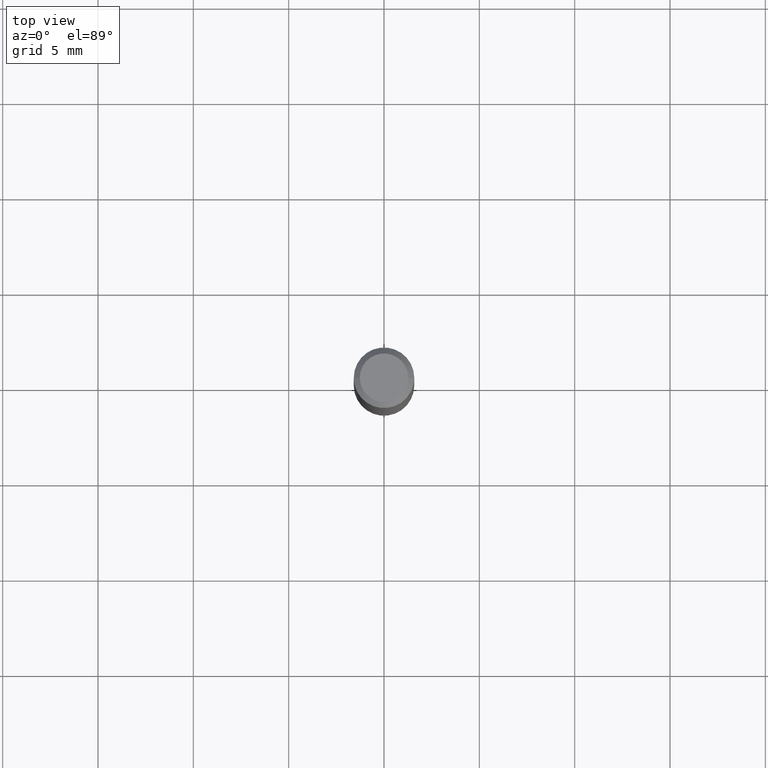
[diagram: clean part render]
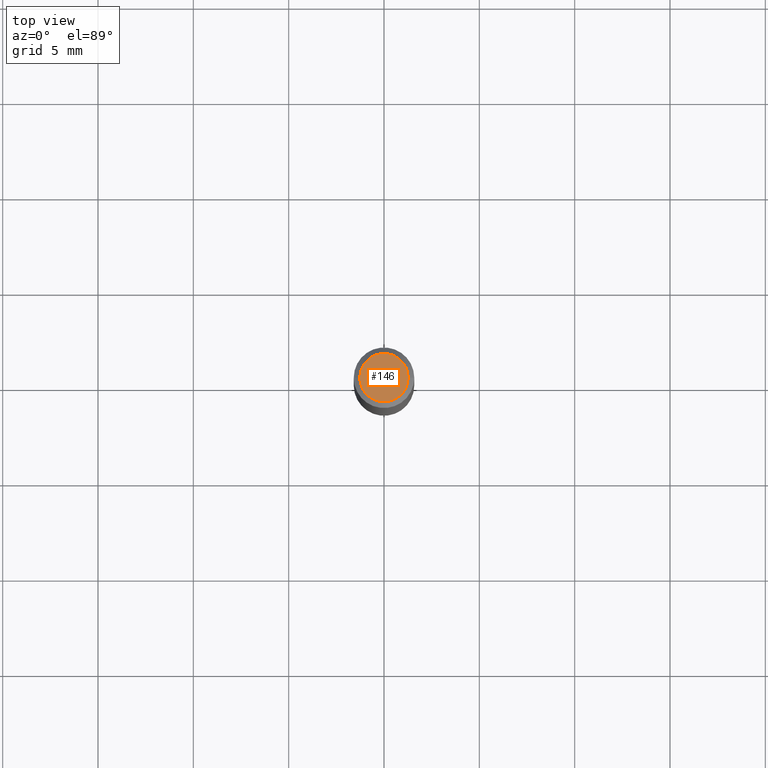
[diagram: same view with one face highlighted and labeled with its STEP entity id]
A machine part, top view. The second image highlights one B-rep face of the part: STEP entity #146.
In plain terms, the highlighted planar face has unit normal (0, -0, -1).
Its self-contained STEP definition (entity closure, byte-faithful):
#3 = DIRECTION ( 'NONE',  ( 1.000000000000000000, -6.982962677686265922E-15, 4.875957971899673662E-29 ) ) ;
#29 = CARTESIAN_POINT ( 'NONE',  ( 3.893286209682126177E-47, -5.558580879666067980E-33, -1.592040838891559689E-18 ) ) ;
#56 = ORIENTED_EDGE ( 'NONE', *, *, #115, .T. ) ;
#100 = VERTEX_POINT ( 'NONE', #219 ) ;
#107 = DIRECTION ( 'NONE',  ( -2.445468806185136597E-29, 3.491481338843145583E-15, 1.000000000000000000 ) ) ;
#115 = EDGE_CURVE ( 'NONE', #100, #439, #391, .T. ) ;
#124 = DIRECTION ( 'NONE',  ( -2.445468806185136597E-29, 3.491481338843145583E-15, 1.000000000000000000 ) ) ;
#146 = ADVANCED_FACE ( 'NONE', ( #258 ), #294, .F. ) ;
#219 = CARTESIAN_POINT ( 'NONE',  ( -0.04999999999999999584, 3.709698922520826725E-16, -1.592040838894077649E-18 ) ) ;
#258 = FACE_OUTER_BOUND ( 'NONE', #397, .T. ) ;
#263 = DIRECTION ( 'NONE',  ( 2.438088387897960049E-29, -3.491481338843145188E-15, -1.000000000000000000 ) ) ;
#273 = DIRECTION ( 'NONE',  ( 1.000000000000000000, -6.982962677686265922E-15, 4.875957971899673662E-29 ) ) ;
#274 = EDGE_CURVE ( 'NONE', #439, #100, #463, .T. ) ;
#276 = CARTESIAN_POINT ( 'NONE',  ( 3.893286209682126177E-47, -5.558580879666067980E-33, -1.592040838891559689E-18 ) ) ;
#294 = PLANE ( 'NONE',  #405 ) ;
#296 = CARTESIAN_POINT ( 'NONE',  ( 0.04999999999999999584, -4.077247707424184212E-16, -1.592040838888913461E-18 ) ) ;
#329 = DIRECTION ( 'NONE',  ( -1.000000000000000000, 6.982962677686265922E-15, -4.876176775795935793E-29 ) ) ;
#356 = AXIS2_PLACEMENT_3D ( 'NONE', #29, #107, #3 ) ;
#391 = CIRCLE ( 'NONE', #356, 0.04999999999999999584 ) ;
#397 = EDGE_LOOP ( 'NONE', ( #56, #436 ) ) ;
#400 = AXIS2_PLACEMENT_3D ( 'NONE', #276, #124, #273 ) ;
#405 = AXIS2_PLACEMENT_3D ( 'NONE', #455, #263, #329 ) ;
#436 = ORIENTED_EDGE ( 'NONE', *, *, #274, .T. ) ;
#439 = VERTEX_POINT ( 'NONE', #296 ) ;
#455 = CARTESIAN_POINT ( 'NONE',  ( 1.946643104841063088E-47, -2.779290439833033990E-33, -7.960204194457798443E-19 ) ) ;
#463 = CIRCLE ( 'NONE', #400, 0.04999999999999999584 ) ;